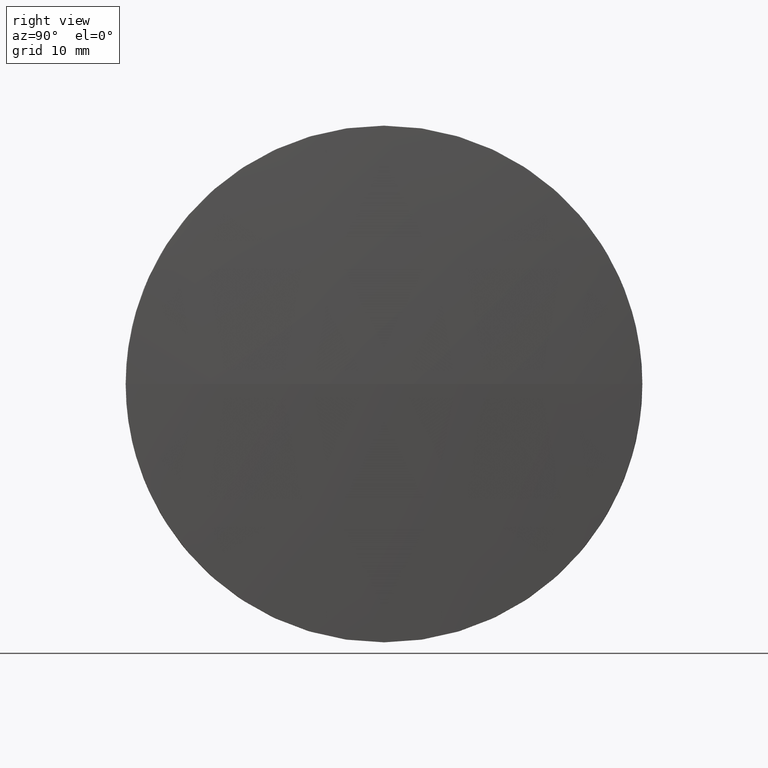
[diagram: clean part render]
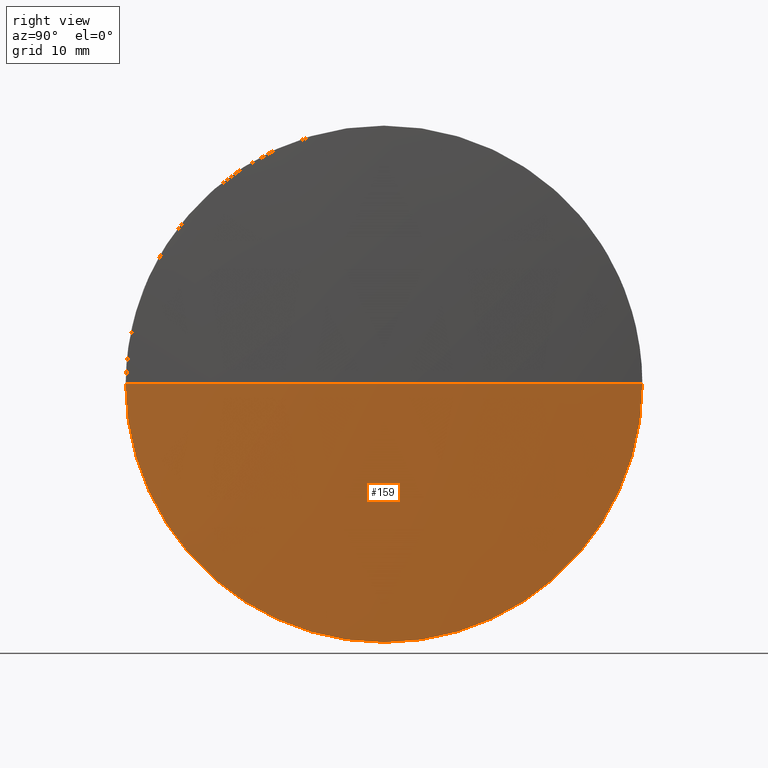
[diagram: same view with one face highlighted and labeled with its STEP entity id]
A machine part, right view. The second image highlights one B-rep face of the part: STEP entity #159.
In plain terms, the highlighted spherical surface has radius 533.933 mm.
Its self-contained STEP definition (entity closure, byte-faithful):
#2 = FACE_OUTER_BOUND ( 'NONE', #22, .T. ) ;
#6 = DIRECTION ( 'NONE',  ( -1.000000000000000000, -0.0000000000000000000, -0.0000000000000000000 ) ) ;
#8 = CARTESIAN_POINT ( 'NONE',  ( 228.9653141997173700, 130.4671098528244200, 0.0000000000000000000 ) ) ;
#12 = CARTESIAN_POINT ( 'NONE',  ( 228.9653141997173700, 130.4671098528244200, -31.50000000000000000 ) ) ;
#13 = EDGE_CURVE ( 'NONE', #80, #155, #161, .T. ) ;
#22 = EDGE_LOOP ( 'NONE', ( #158, #58, #35, #68 ) ) ;
#24 = DIRECTION ( 'NONE',  ( 0.0000000000000000000, -1.000000000000000000, -1.224646799147353200E-016 ) ) ;
#25 = DIRECTION ( 'NONE',  ( -1.000000000000000000, 0.0000000000000000000, 0.0000000000000000000 ) ) ;
#26 = DIRECTION ( 'NONE',  ( 0.0000000000000000000, -1.224646799147353200E-016, 1.000000000000000000 ) ) ;
#27 = DIRECTION ( 'NONE',  ( 0.0000000000000000000, 0.0000000000000000000, 1.000000000000000000 ) ) ;
#29 = EDGE_CURVE ( 'NONE', #155, #117, #103, .T. ) ;
#34 = CARTESIAN_POINT ( 'NONE',  ( -304.0374277357623800, 130.4671098528253900, 0.0000000000000000000 ) ) ;
#35 = ORIENTED_EDGE ( 'NONE', *, *, #177, .F. ) ;
#44 = CARTESIAN_POINT ( 'NONE',  ( 228.9653141997173400, 98.96710985282423700, 0.0000000000000000000 ) ) ;
#47 = EDGE_CURVE ( 'NONE', #80, #183, #51, .T. ) ;
#51 = CIRCLE ( 'NONE', #109, 533.9327419354798400 ) ;
#54 = CARTESIAN_POINT ( 'NONE',  ( -304.0374277357623800, 130.4671098528253900, 0.0000000000000000000 ) ) ;
#58 = ORIENTED_EDGE ( 'NONE', *, *, #47, .T. ) ;
#59 = AXIS2_PLACEMENT_3D ( 'NONE', #63, #27, #168 ) ;
#63 = CARTESIAN_POINT ( 'NONE',  ( -304.0374277357623800, 130.4671098528253900, 0.0000000000000000000 ) ) ;
#68 = ORIENTED_EDGE ( 'NONE', *, *, #29, .F. ) ;
#73 = CIRCLE ( 'NONE', #163, 31.50000000000000000 ) ;
#80 = VERTEX_POINT ( 'NONE', #141 ) ;
#95 = AXIS2_PLACEMENT_3D ( 'NONE', #8, #6, #116 ) ;
#96 = DIRECTION ( 'NONE',  ( 0.0000000000000000000, 0.0000000000000000000, -1.000000000000000000 ) ) ;
#103 = CIRCLE ( 'NONE', #95, 31.50000000000000000 ) ;
#109 = AXIS2_PLACEMENT_3D ( 'NONE', #54, #96, #25 ) ;
#114 = SPHERICAL_SURFACE ( 'NONE', #59, 533.9327419354798400 ) ;
#116 = DIRECTION ( 'NONE',  ( 0.0000000000000000000, 0.0000000000000000000, 1.000000000000000000 ) ) ;
#117 = VERTEX_POINT ( 'NONE', #12 ) ;
#133 = DIRECTION ( 'NONE',  ( 0.0000000000000000000, 0.0000000000000000000, 1.000000000000000000 ) ) ;
#136 = CARTESIAN_POINT ( 'NONE',  ( 228.9653141997173700, 130.4671098528244200, 0.0000000000000000000 ) ) ;
#141 = CARTESIAN_POINT ( 'NONE',  ( 229.8953141997174300, 130.4671098528253600, 0.0000000000000000000 ) ) ;
#147 = AXIS2_PLACEMENT_3D ( 'NONE', #34, #26, #24 ) ;
#155 = VERTEX_POINT ( 'NONE', #169 ) ;
#158 = ORIENTED_EDGE ( 'NONE', *, *, #13, .F. ) ;
#159 = ADVANCED_FACE ( 'NONE', ( #2 ), #114, .T. ) ;
#161 = CIRCLE ( 'NONE', #147, 533.9327419354798400 ) ;
#163 = AXIS2_PLACEMENT_3D ( 'NONE', #136, #185, #133 ) ;
#168 = DIRECTION ( 'NONE',  ( 0.0000000000000000000, -1.000000000000000000, 0.0000000000000000000 ) ) ;
#169 = CARTESIAN_POINT ( 'NONE',  ( 228.9653141997173400, 161.9671098528255900, 3.857637417314183200E-015 ) ) ;
#177 = EDGE_CURVE ( 'NONE', #117, #183, #73, .T. ) ;
#183 = VERTEX_POINT ( 'NONE', #44 ) ;
#185 = DIRECTION ( 'NONE',  ( -1.000000000000000000, -0.0000000000000000000, -0.0000000000000000000 ) ) ;